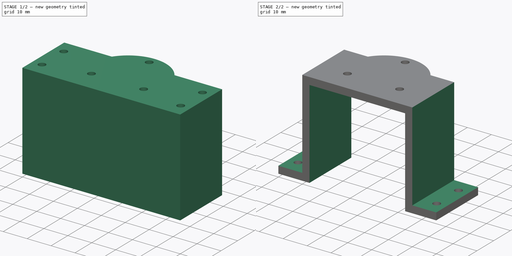
[diagram: build sequence overview — one tinted view per stage of 2, left to right]
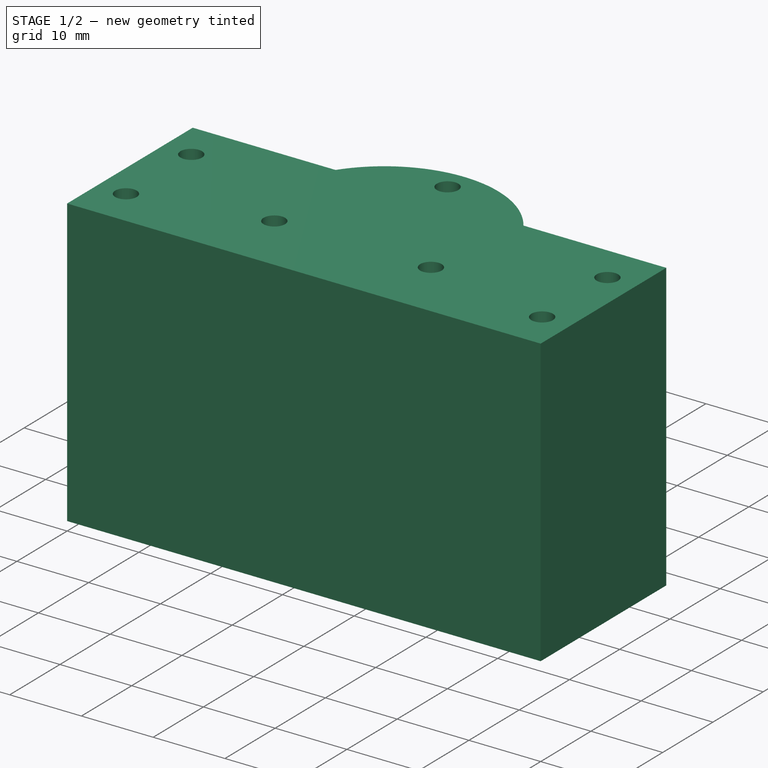
[diagram: stage 1 of 2 — iso view after this stage's code; geometry added in this stage tinted green]
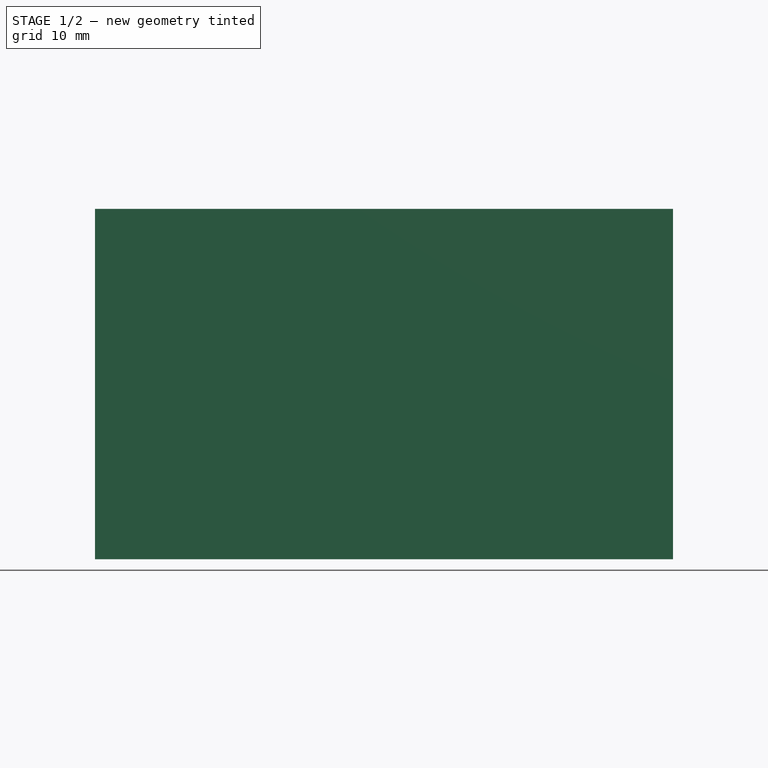
[diagram: stage 1 of 2 — front view after this stage's code; geometry added in this stage tinted green]
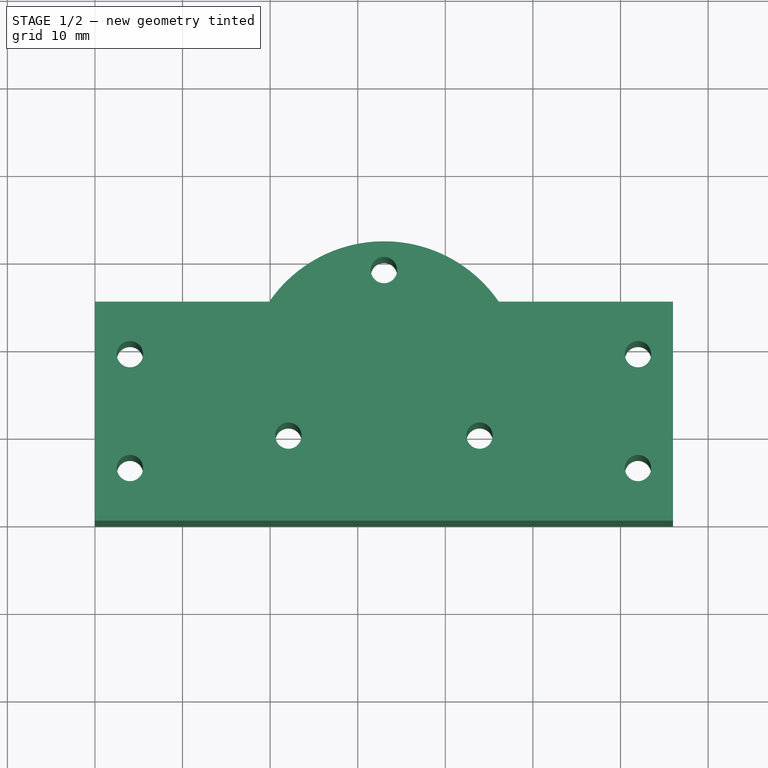
[diagram: stage 1 of 2 — top view after this stage's code; geometry added in this stage tinted green]
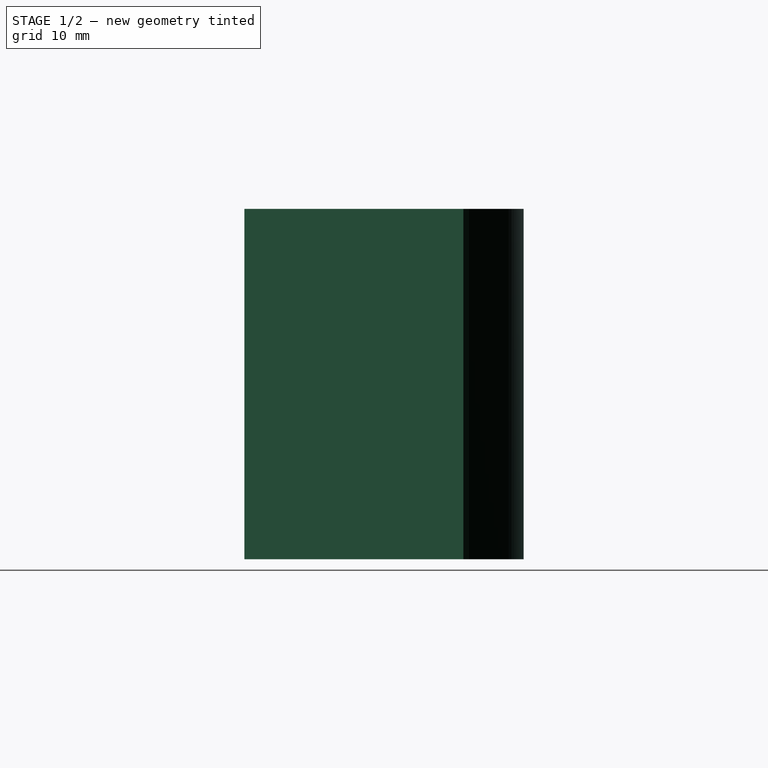
[diagram: stage 1 of 2 — right view after this stage's code; geometry added in this stage tinted green]
FCSTD DOCUMENT  (FreeCAD 0.16R6707 (Git))
Label: support_ressort
License: All rights reserved
LicenseURL: http://en.wikipedia.org/wiki/All_rights_reserved
objects: Drawing::FeatureViewPart×4, Sketcher::SketchObject×2, PartDesign::Pad×1, PartDesign::Pocket×1, Drawing::FeaturePage×1
note: 6 computed .brp shape members not serialized (recipe doc carries the construction recipe); baked Part::Feature solids carry a one-line shape summary decoded from their .brp

FEATURE [Sketcher::SketchObject] Sketch
  sketch-geometry (21):
    g0: GeomPoint [constr] X=0 Y=25 Z=0
    g1: GeomPoint [constr] X=66 Y=0 Z=0
    g2: GeomPoint [constr] X=66 Y=25 Z=0
    g3: GeomPoint [constr] X=33 Y=16 Z=0
    g4: Circle CenterX=33 CenterY=28.6 CenterZ=0 NormalX=0 NormalY=0 NormalZ=1 Radius=1.5
    g5: Circle CenterX=43.9119 CenterY=9.7 CenterZ=0 NormalX=0 NormalY=0 NormalZ=1 Radius=1.5
    g6: Circle CenterX=22.0881 CenterY=9.7 CenterZ=0 NormalX=0 NormalY=0 NormalZ=1 Radius=1.5
    g7: LineSegment StartX=0 StartY=25 StartZ=0 EndX=19.9057 EndY=25 EndZ=0
    g8: LineSegment StartX=66 StartY=25 StartZ=0 EndX=46.0943 EndY=25 EndZ=0
    g9: ArcOfCircle CenterX=33 CenterY=16 CenterZ=0 NormalX=0 NormalY=0 NormalZ=1 Radius=15.889 StartAngle=0.602166 EndAngle=2.53943
    g10: LineSegment StartX=0 StartY=25 StartZ=0 EndX=0 EndY=0 EndZ=0
    g11: LineSegment StartX=0 StartY=0 StartZ=0 EndX=66 EndY=0 EndZ=0
    g12: LineSegment StartX=66 StartY=0 StartZ=0 EndX=66 EndY=25 EndZ=0
    g13: GeomPoint [constr] X=4 Y=19 Z=0
    g14: GeomPoint [constr] X=4 Y=6 Z=0
    g15: GeomPoint [constr] X=62 Y=19 Z=0
    g16: GeomPoint [constr] X=62 Y=6 Z=0
    g17: Circle CenterX=4 CenterY=19 CenterZ=0 NormalX=0 NormalY=0 NormalZ=1 Radius=1.5
    g18: Circle CenterX=4 CenterY=6 CenterZ=0 NormalX=0 NormalY=0 NormalZ=1 Radius=1.5
    g19: Circle CenterX=62 CenterY=19 CenterZ=0 NormalX=0 NormalY=0 NormalZ=1 Radius=1.5
    g20: Circle CenterX=62 CenterY=6 CenterZ=0 NormalX=0 NormalY=0 NormalZ=1 Radius=1.5
  constraints (40):
    c: PointOnObject(g0,g-2)
    c: PointOnObject(g1,g-1)
    c: DistanceY(g2,g0) = 0
    c: DistanceX(g2,g1) = 0
    c: DistanceY(g0) = 25
    c: DistanceX(g-1,g1) = 66
    c: DistanceX(g3) = 33
    c: DistanceY(g3) = 16
    c: Radius(g6) = 1.5
    c: Equal(g6,g4)
    c: Equal(g6,g5)
    c: Coincident(g7,g0)
    c: Horizontal(g7)
    c: Coincident(g8,g2)
    c: Horizontal(g8)
    c: Coincident(g9,g3)
    c: Coincident(g9,g8)
    c: Coincident(g9,g7)
    c: Coincident(g10,g0)
    c: Coincident(g10,g-1)
    c: Coincident(g11,g-1)
    c: Coincident(g11,g1)
    c: Coincident(g12,g1)
    c: Coincident(g12,g2)
    c: DistanceY(g13,g0) = 6
    c: DistanceY(g14) = 6
    c: DistanceX(g13) = 4
    c: DistanceX(g14) = 4
    c: DistanceY(g15,g2) = 6
    c: DistanceY(g16) = 6
    c: DistanceX(g16,g1) = 4
    c: DistanceX(g15,g2) = 4
    c: Coincident(g17,g13)
    c: Coincident(g18,g14)
    c: Coincident(g19,g15)
    c: Coincident(g20,g16)
    c: Radius(g19) = 1.5
    c: Equal(g19,g20)
    c: Equal(g19,g18)
    c: Equal(g19,g17)
FEATURE [PartDesign::Pad] Pad
  Length = 40
  Length2 = 100
  Sketch = -> Sketch
  Type = 0
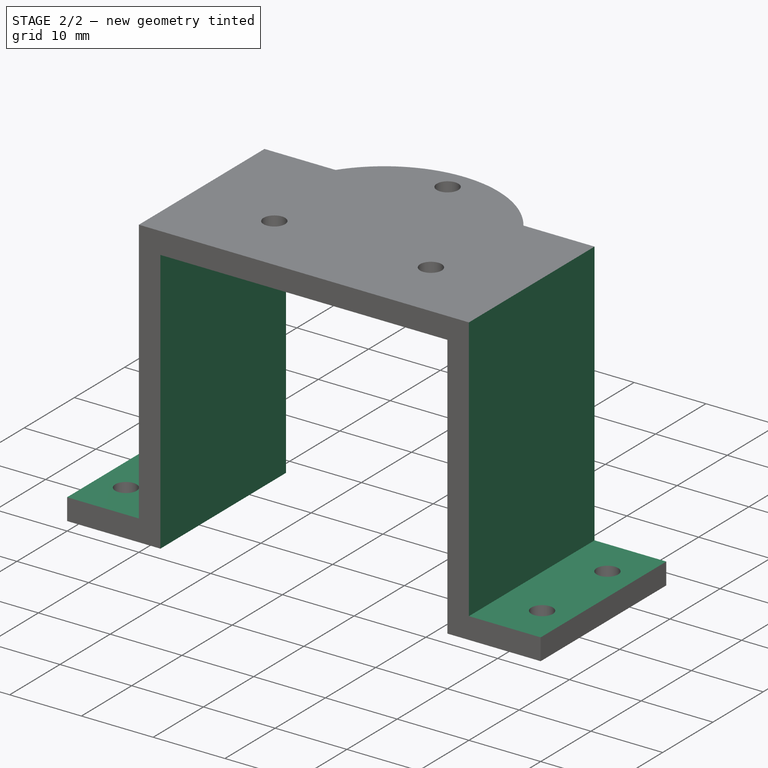
[diagram: stage 2 of 2 — iso view after this stage's code; geometry added in this stage tinted green]
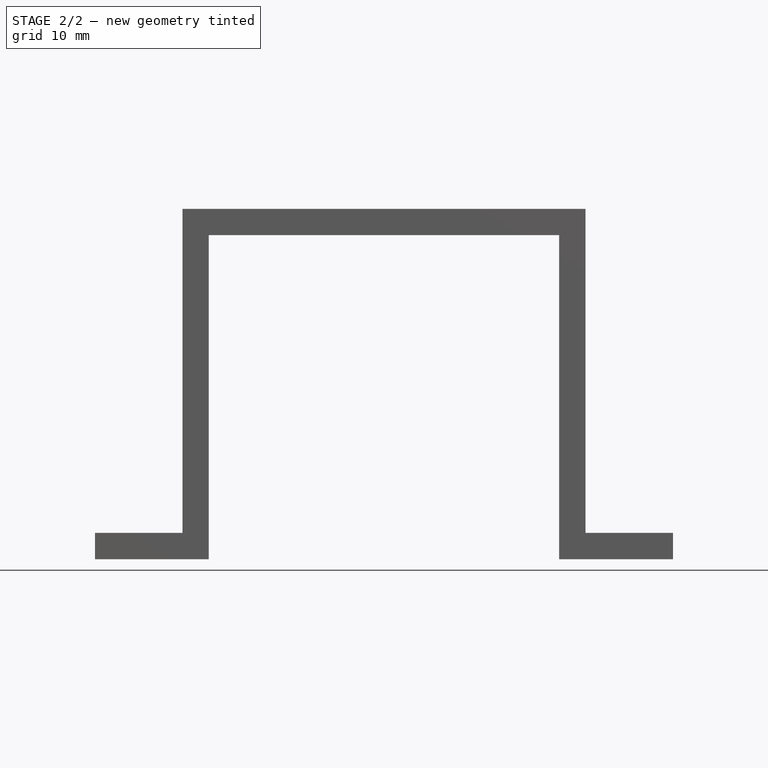
[diagram: stage 2 of 2 — front view after this stage's code; geometry added in this stage tinted green]
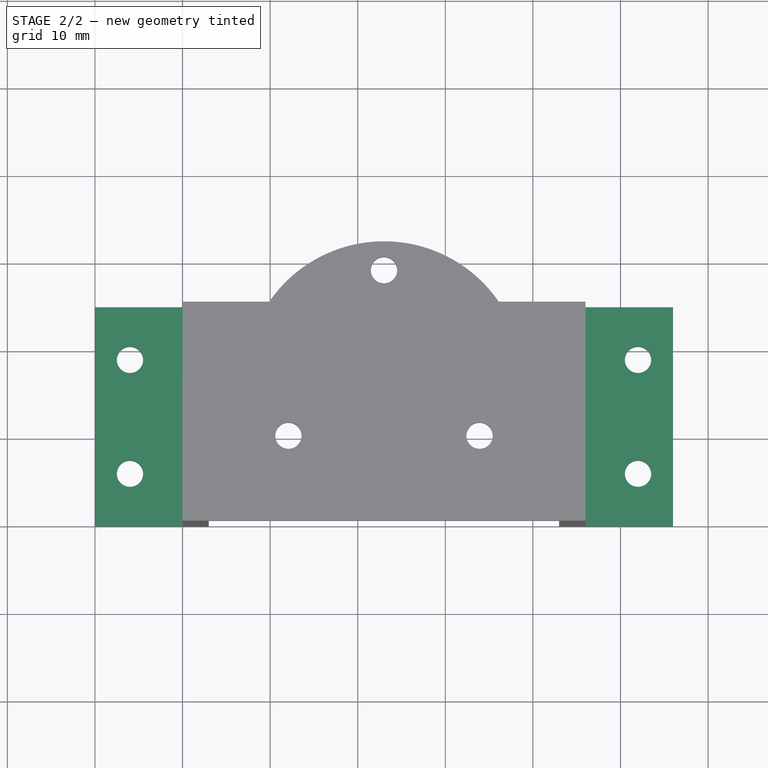
[diagram: stage 2 of 2 — top view after this stage's code; geometry added in this stage tinted green]
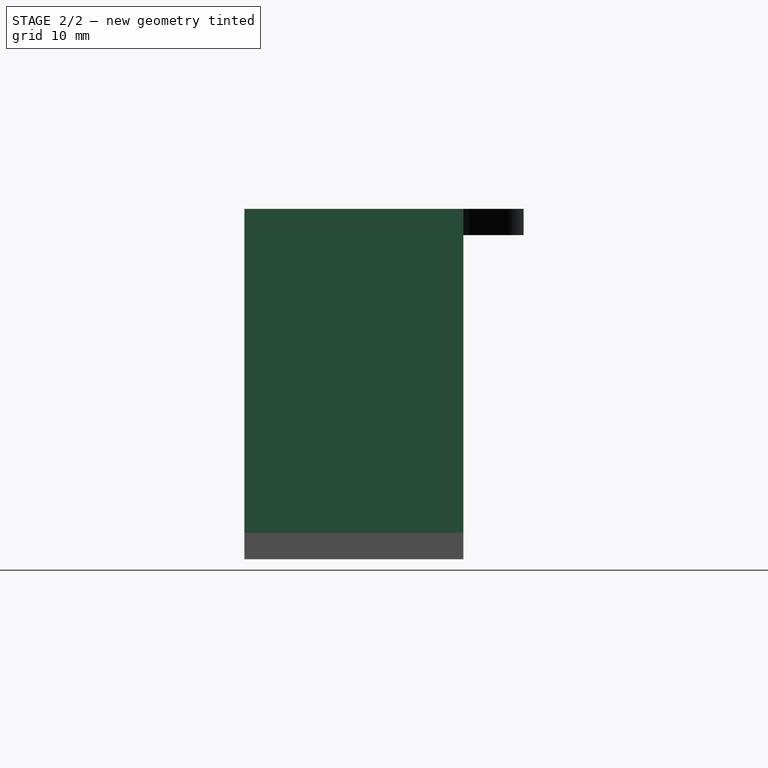
[diagram: stage 2 of 2 — right view after this stage's code; geometry added in this stage tinted green]
FEATURE [Sketcher::SketchObject] Sketch001
  Placement = pos=(0,0,0) rot=(1,0,0;1.5708rad)
  Support = -> Pad [Face5]
  sketch-geometry (15):
    g0: GeomPoint [constr] X=0 Y=3 Z=0
    g1: GeomPoint [constr] X=66 Y=3 Z=0
    g2: GeomPoint [constr] X=13 Y=0 Z=0
    g3: LineSegment StartX=0 StartY=3 StartZ=0 EndX=10 EndY=3 EndZ=0
    g4: LineSegment StartX=10 StartY=3 StartZ=0 EndX=10 EndY=40 EndZ=0
    g5: LineSegment StartX=10 StartY=40 StartZ=0 EndX=0 EndY=40 EndZ=0
    g6: LineSegment StartX=0 StartY=40 StartZ=0 EndX=0 EndY=3 EndZ=0
    g7: LineSegment StartX=13 StartY=0 StartZ=0 EndX=53 EndY=0 EndZ=0
    g8: LineSegment StartX=53 StartY=0 StartZ=0 EndX=53 EndY=37 EndZ=0
    g9: LineSegment StartX=53 StartY=37 StartZ=0 EndX=13 EndY=37 EndZ=0
    g10: LineSegment StartX=13 StartY=37 StartZ=0 EndX=13 EndY=0 EndZ=0
    g11: LineSegment StartX=66 StartY=3 StartZ=0 EndX=56 EndY=3 EndZ=0
    g12: LineSegment StartX=56 StartY=3 StartZ=0 EndX=56 EndY=40 EndZ=0
    g13: LineSegment StartX=56 StartY=40 StartZ=0 EndX=66 EndY=40 EndZ=0
    g14: LineSegment StartX=66 StartY=40 StartZ=0 EndX=66 EndY=3 EndZ=0
  constraints (39):
    c: PointOnObject(g0,g-2)
    c: DistanceY(g0) = 3
    c: PointOnObject(g2,g-1)
    c: DistanceY(g1) = 3
    c: DistanceX(g2) = 13
    c: DistanceX(g1) = 66
    c: Coincident(g3,g4)
    c: Coincident(g4,g5)
    c: Coincident(g5,g6)
    c: Coincident(g6,g3)
    c: Horizontal(g3)
    c: Horizontal(g5)
    c: Vertical(g4)
    c: Vertical(g6)
    c: Coincident(g3,g0)
    c: Coincident(g7,g8)
    c: Coincident(g8,g9)
    c: Coincident(g9,g10)
    c: Coincident(g10,g7)
    c: Horizontal(g7)
    c: Horizontal(g9)
    c: Vertical(g8)
    c: Vertical(g10)
    c: Coincident(g7,g2)
    c: Coincident(g11,g12)
    c: Coincident(g12,g13)
    c: Coincident(g13,g14)
    c: Coincident(g14,g11)
    c: Horizontal(g11)
    c: Horizontal(g13)
    c: Vertical(g12)
    c: Vertical(g14)
    c: Coincident(g11,g1)
    c: Distance(g13) = 10
    c: Distance(g5) = 10
    c: Distance(g4) = 37
    c: Distance(g12) = 37
    c: DistanceY(g8,g8) = 37
    c: Distance(g9) = 40
FEATURE [PartDesign::Pocket] Pocket
  Length = 5
  Sketch = -> Sketch001
  Type = 1
FEATURE [Drawing::FeatureViewPart] Ortho  label="Ortho_0_0"
  Direction = (1,0,0)
  HiddenWidth = 0.15
  LineWidth = 0.35
  Rotation = -90
  Scale = 1.5
  ShowHiddenLines = false
  ShowSmoothLines = false
  Source = -> Pocket
  Tolerance = 0.05
  ViewResult = <g id="Ortho_0_0"\n   transform="rotate(-90,31.0555,247.667) translate(31.0555,247.667) scale(1.5,1.5)"\n  >\n<g   stroke="rgb(0, 0, 0)"\n   stroke-width="0.233333"\n   stroke-linecap="butt"\n   stroke-linejoin="miter"\n   fill="none"\n   transform="scale(1,-1)"\n  >\n<path id= "1" d=" M 40 -31.889 L 37 -31.889 " />\n</g>\n<g   stroke="rgb(0, 0, 0)"\n   stroke-width="0.233333"\n   stroke-linecap="butt"\n   stroke-linejoin="miter"\n   fill="none"\n   transform="scale(1,-1)"\n  >\n<path id= "1" d=" M 0 -25 L 37 -25 " />\n<path id= "2" d=" M 0 0 L -9.99201e-16 -4.5 " />\n<path id= "3" d=" M -1.66533e-15 -7.5 L -3.88578e-15 -17.5 " />\n<path id= "4" d=" M -4.55191e-15 -20.5 L -5.55112e-15 -25 " />\n<path id= "5" d=" M 37 -8.21565e-15 L 3 -6.66134e-16 " />\n<path d="M37,-31.889 L37,-31.851  L37,-31.7371  L37,-31.548  L37,-31.2844  L37,-30.9477  L37,-30.5395  L37,-30.0617  L37,-29.5166  L37,-28.9068  L37,-28.2353  L37,-27.5053  L37,-26.7201  L37,-25.8837  L37,-25 " /><path d="M40,-25 L40,-25.8837  L40,-26.7201  L40,-27.5053  L40,-28.2353  L40,-28.9068  L40,-29.5166  L40,-30.0617  L40,-30.5395  L40,-30.9477  L40,-31.2844  L40,-31.548  L40,-31.7371  L40,-31.851  L40,-31.889 " /><path id= "8" d=" M 37 -25 L 40 -25 " />\n<path id= "9" d=" M 40 -8.88178e-15 L 40 -25 " />\n<path id= "10" d=" M 0 0 L 3 0 " />\n<path id= "11" d=" M 3 -6.66134e-16 L 40 -8.88178e-15 " />\n<path id= "12" d=" M 3 -25 L 40 -25 " />\n<path id= "13" d=" M 0 -25 L 3 -25 " />\n<path id= "14" d=" M 3 -6.66134e-16 L 3 -4.5 " />\n<path id= "15" d=" M 3 -7.5 L 3 -17.5 " />\n<path id= "16" d=" M 3 -20.5 L 3 -25 " />\n<path id= "17" d=" M 0 0 L 0 -25 " />\n<path id= "18" d=" M 3 -6.66134e-16 L 3 -25 " />\n<path d="M3,-7.5 L3,-7.49057  L3,-7.46239  L3,-7.41582  L3,-7.35145  L3,-7.27009  L3,-7.17275  L3,-7.06066  L3,-6.93523  L3,-6.79805  L3,-6.65083  L3,-6.49542  L3,-6.33378  L3,-6.16795  L3,-6 " /></g>\n</g>
  Visible = true
  X = 31.0555
  Y = 247.667
FEATURE [Drawing::FeatureViewPart] Ortho001  label="Ortho_0_1"
  Direction = (0,0,1)
  HiddenWidth = 0.15
  LineWidth = 0.35
  Rotation = 90
  Scale = 1.5
  ShowHiddenLines = false
  ShowSmoothLines = false
  Source = -> Pocket
  Tolerance = 0.05
  ViewResult = <g id="Ortho_0_1"\n   transform="rotate(90,31.0555,49.3333) translate(31.0555,49.3333) scale(1.5,1.5)"\n  >\n<g   stroke="rgb(0, 0, 0)"\n   stroke-width="0.233333"\n   stroke-linecap="butt"\n   stroke-linejoin="miter"\n   fill="none"\n   transform="scale(1,-1)"\n  >\n<path id= "1" d=" M 10 25 L 19.9057 25 " />\n<path id= "2" d=" M 10 25 L 0 25 " />\n<path d="M46.0943 25 A15.889 15.889 0 0 1 19.9057 25" /><path id= "4" d=" M 10 8.88178e-15 L 10 25 " />\n<path id= "5" d=" M 10 0 L 56 0 " />\n<path id= "6" d=" M 56 8.88178e-15 L 56 25 " />\n<path id= "7" d=" M 56 25 L 46.0943 25 " />\n<circle cx ="43.9119" cy ="9.7" r ="1.5" /><circle cx ="22.0881" cy ="9.7" r ="1.5" /><circle cx ="33" cy ="28.6" r ="1.5" /><path id= "11" d=" M 0 6.66134e-16 L 10 6.66134e-16 " />\n<path id= "12" d=" M 0 6.66134e-16 L 0 25 " />\n<circle cx ="4" cy ="19" r ="1.5" /><circle cx ="4" cy ="6" r ="1.5" /><path id= "15" d=" M 66 6.66134e-16 L 56 6.66134e-16 " />\n<path id= "16" d=" M 66 25 L 56 25 " />\n<path id= "17" d=" M 66 6.66134e-16 L 66 25 " />\n<circle cx ="62" cy ="19" r ="1.5" /><circle cx ="62" cy ="6" r ="1.5" /></g>\n</g>
  Visible = true
  X = 31.0555
  Y = 49.3333
FEATURE [Drawing::FeatureViewPart] Ortho002  label="Ortho_1_1"
  Direction = (0.57735,0.57735,0.57735)
  HiddenWidth = 0.15
  LineWidth = 0.35
  Rotation = 120
  Scale = 1.5
  ShowHiddenLines = false
  ShowSmoothLines = false
  Source = -> Pocket
  Tolerance = 0.05
  ViewResult = <blob: 3570 chars omitted>
  Visible = true
  X = 167.535
  Y = 93.356
FEATURE [Drawing::FeatureViewPart] Ortho003  label="Ortho_1_0"
  Direction = (0,1,0)
  HiddenWidth = 0.15
  LineWidth = 0.35
  Rotation = -90
  Scale = 1.5
  ShowHiddenLines = false
  ShowSmoothLines = false
  Source = -> Pocket
  Tolerance = 0.05
  ViewResult = <g id="Ortho_1_0"\n   transform="rotate(-90,198.945,247.667) translate(198.945,247.667) scale(1.5,1.5)"\n  >\n<g   stroke="rgb(0, 0, 0)"\n   stroke-width="0.233333"\n   stroke-linecap="butt"\n   stroke-linejoin="miter"\n   fill="none"\n   transform="scale(1,-1)"\n  >\n<path id= "1" d=" M 0 0 L 0 13 " />\n<path id= "2" d=" M 0 13 L 37 13 " />\n<path id= "3" d=" M 37 13 L 37 19.9057 " />\n<path id= "4" d=" M 37 19.9057 L 40 19.9057 " />\n<path id= "5" d=" M 40 10 L 40 19.9057 " />\n<path id= "6" d=" M 40 10 L 3 10 " />\n<path id= "7" d=" M 3 10 L 3 0 " />\n<path id= "8" d=" M 0 0 L 3 0 " />\n<path d="M37,19.9057 L37,21.2723  L37,22.863  L37,24.6476  L37,26.5919  L37,28.6586  L37,30.8084  L37,33  L37,35.1916  L37,37.3414  L37,39.4081  L37,41.3524  L37,43.137  L37,44.7277  L37,46.0943 " /><path id= "10" d=" M 37 53 L 37 46.0943 " />\n<path d="M37,31.5 L37,31.5376  L37,31.6485  L37,31.8273  L37,32.0648  L37,32.3492  L37,32.6662  L37,33  L37,33.3338  L37,33.6508  L37,33.9352  L37,34.1727  L37,34.3515  L37,34.4624  L37,34.5 " /><path d="M40,46.0943 L40,44.7277  L40,43.137  L40,41.3524  L40,39.4081  L40,37.3414  L40,35.1916  L40,33  L40,30.8084  L40,28.6586  L40,26.5919  L40,24.6476  L40,22.863  L40,21.2723  L40,19.9057 " /><path id= "13" d=" M 37 46.0943 L 40 46.0943 " />\n<path id= "14" d=" M 40 56 L 40 46.0943 " />\n<path id= "15" d=" M 0 66 L 0 53 " />\n<path id= "16" d=" M -2.77556e-15 53 L 37 53 " />\n<path id= "17" d=" M 3 56 L 40 56 " />\n<path id= "18" d=" M 3 66 L 3 56 " />\n<path id= "19" d=" M 0 66 L 3 66 " />\n</g>\n</g>
  Visible = true
  X = 198.945
  Y = 247.667
FEATURE [Drawing::FeaturePage] Page
  EditableTexts = AUTHOR NAME | CREATION DATE | SUPERVISOR NAME | CHECK DATE | SCALE | WEIGHT | NUMBER | SHEET | TITLE | SUBTITLE
  Group = -> [Ortho,Ortho001,Ortho002,Ortho003]
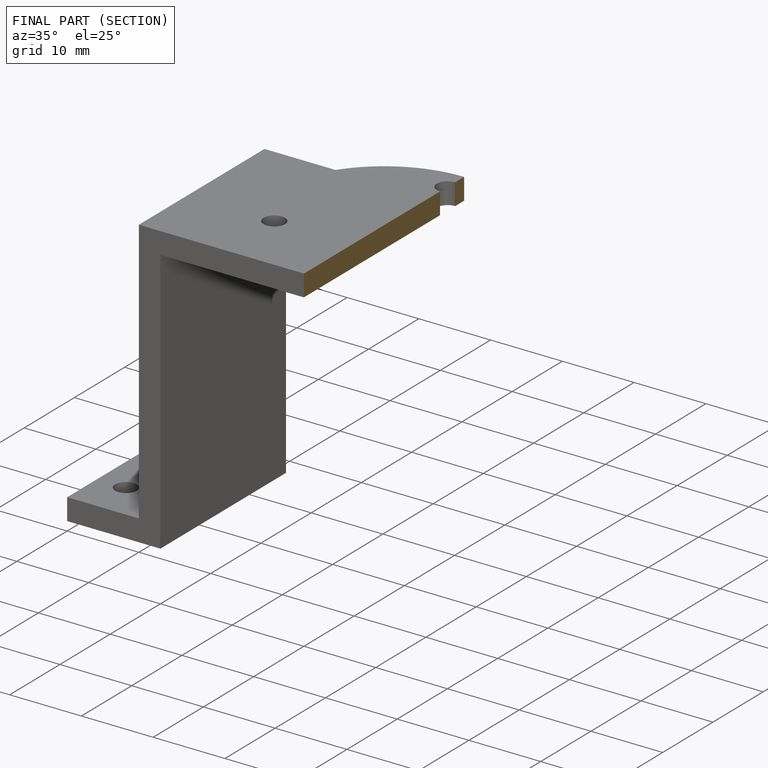
[diagram: finished part — half-section view (interior)]
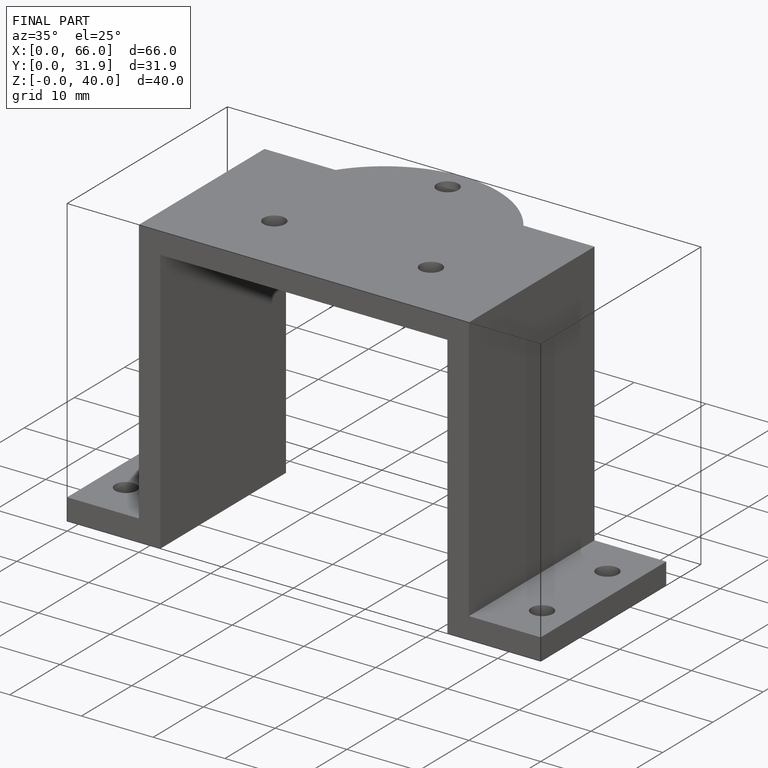
[diagram: finished part — iso view with bounding-box wireframe]
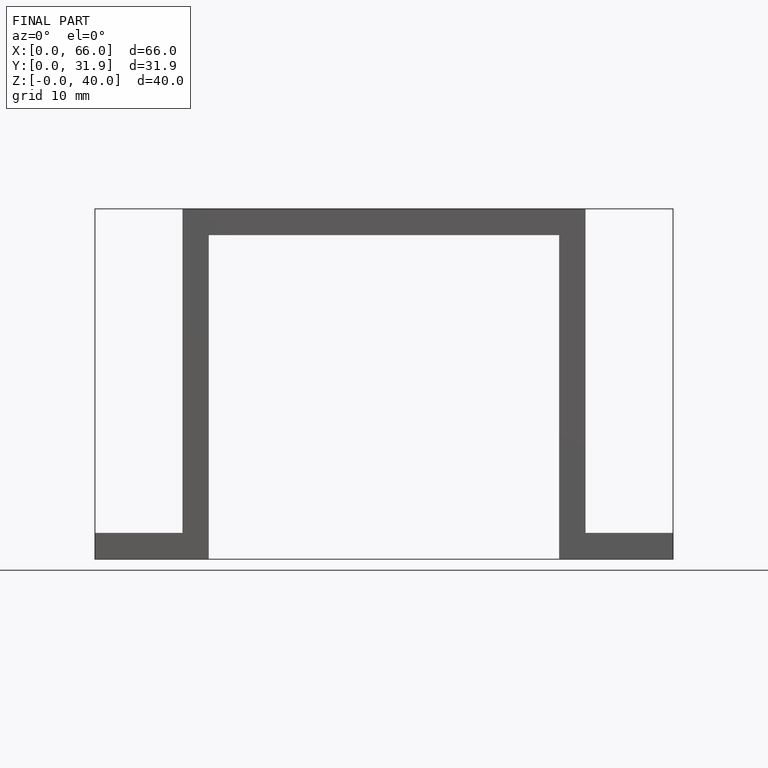
[diagram: finished part — front view with bounding-box wireframe]
